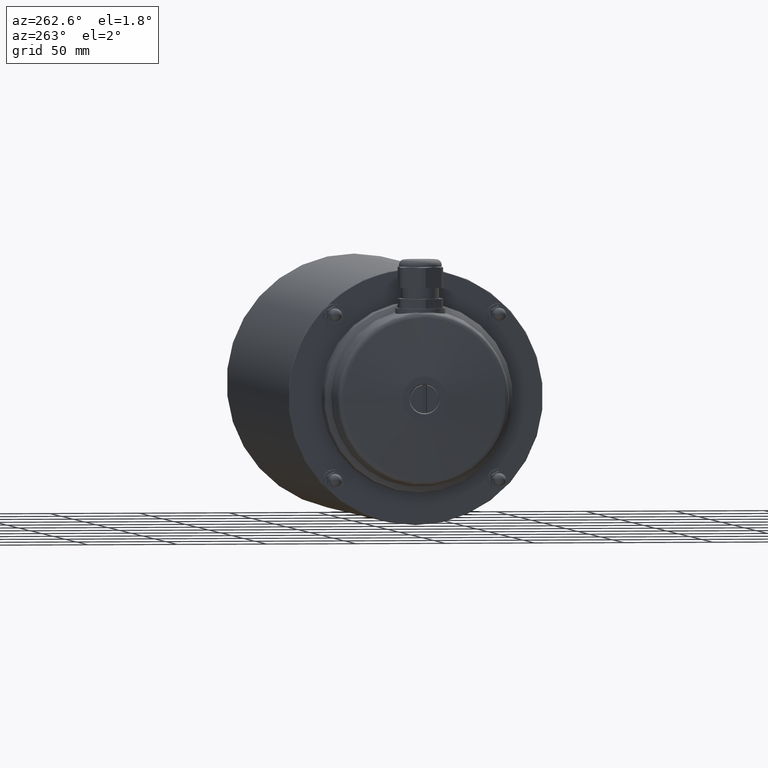
[diagram: clean part render]
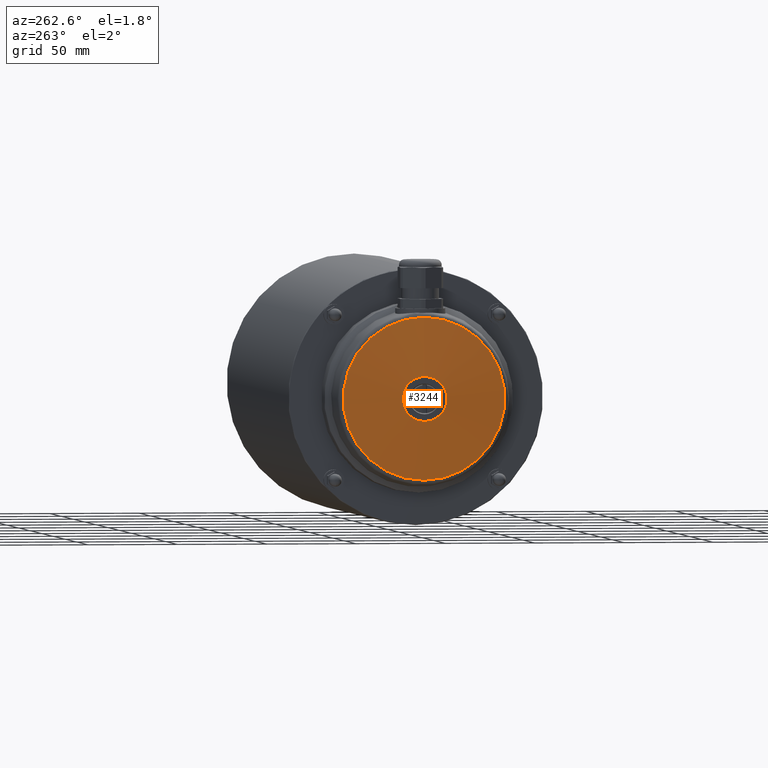
[diagram: same view with one face highlighted and labeled with its STEP entity id]
A machine part, auxiliary view. The second image highlights one B-rep face of the part: STEP entity #3244.
In plain terms, the highlighted conical surface has half-angle 85 deg.
Its self-contained STEP definition (entity closure, byte-faithful):
#32=CONICAL_SURFACE('',#3472,12.5,1.48352986419518);
#541=ORIENTED_EDGE('',*,*,#1065,.T.);
#542=ORIENTED_EDGE('',*,*,#1064,.F.);
#1064=EDGE_CURVE('',#1332,#1332,#1512,.T.);
#1065=EDGE_CURVE('',#1333,#1333,#1513,.T.);
#1332=VERTEX_POINT('',#4589);
#1333=VERTEX_POINT('',#4592);
#1512=CIRCLE('',#3471,12.5);
#1513=CIRCLE('',#3473,45.2778767519798);
#1641=EDGE_LOOP('',(#541));
#1642=EDGE_LOOP('',(#542));
#1884=FACE_BOUND('',#1641,.T.);
#1885=FACE_BOUND('',#1642,.T.);
#3244=ADVANCED_FACE('',(#1884,#1885),#32,.T.);
#3471=AXIS2_PLACEMENT_3D('',#4588,#3886,#3887);
#3472=AXIS2_PLACEMENT_3D('',#4590,#3888,#3889);
#3473=AXIS2_PLACEMENT_3D('',#4591,#3890,#3891);
#3886=DIRECTION('',(-1.,0.,0.));
#3887=DIRECTION('',(0.,0.,1.));
#3888=DIRECTION('',(1.,0.,0.));
#3889=DIRECTION('',(0.,0.,-1.));
#3890=DIRECTION('',(-1.,0.,0.));
#3891=DIRECTION('',(0.,0.,1.));
#4588=CARTESIAN_POINT('',(-310.5,0.,0.));
#4589=CARTESIAN_POINT('',(-310.5,0.,12.5));
#4590=CARTESIAN_POINT('',(-310.5,0.,0.));
#4591=CARTESIAN_POINT('',(-307.632307369752,0.,0.));
#4592=CARTESIAN_POINT('',(-307.632307369752,0.,45.2778767519798));